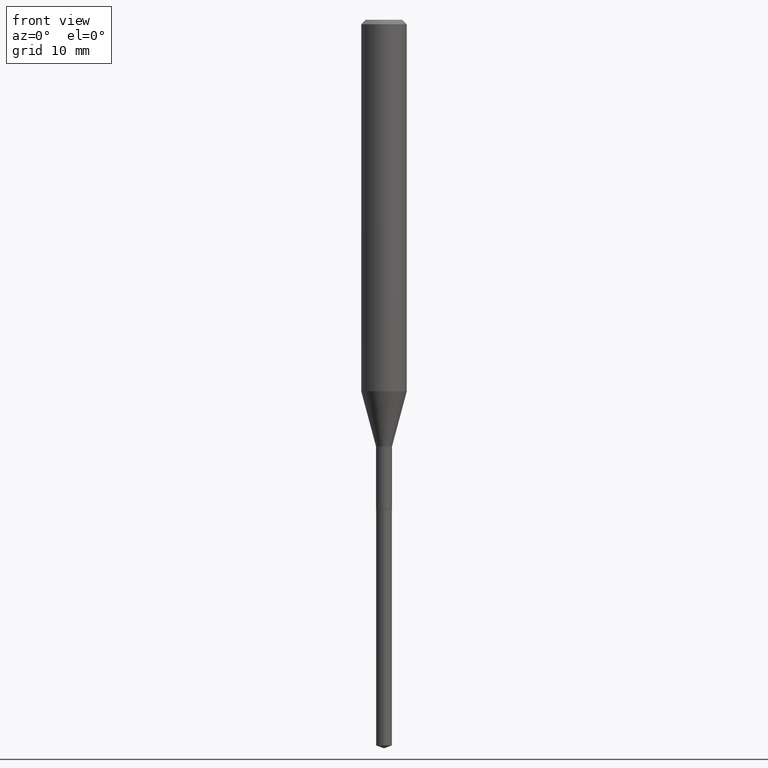
[diagram: clean part render]
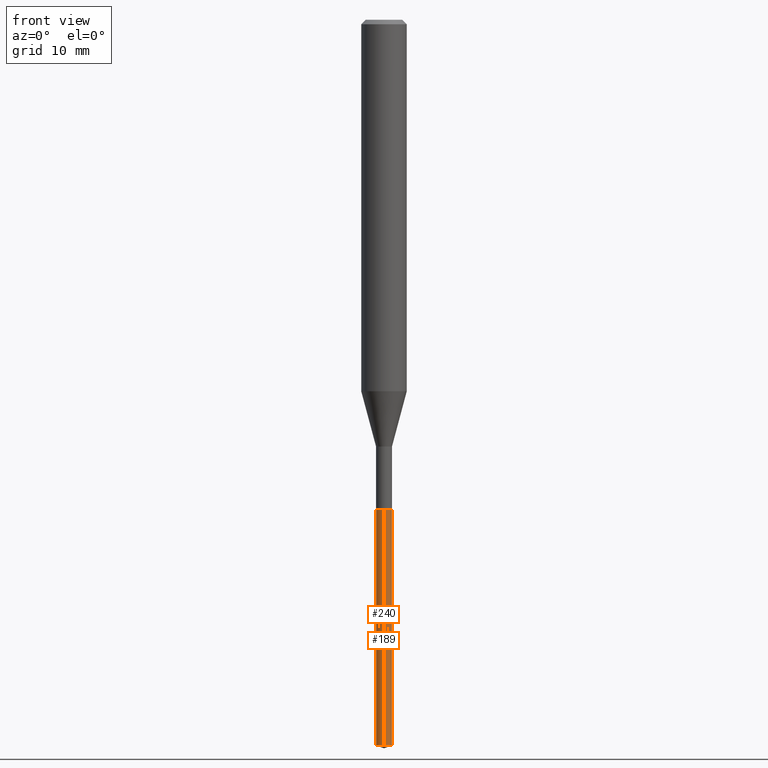
[diagram: same view with one multi-face feature highlighted, each face labeled with its STEP entity id]
A machine part, front view. The highlighted faces form ONE feature: a constant-radius fillet chain: 2 tangent blend faces with common blend radius 0.6998 mm. The faces share edges in the B-rep.
Their STEP definitions:
[1] entity #240 (Cylinder):
#2 = LINE ( 'NONE', #145, #117 ) ;
#6 = ORIENTED_EDGE ( 'NONE', *, *, #220, .F. ) ;
#21 = EDGE_CURVE ( 'NONE', #69, #209, #286, .T. ) ;
#31 = DIRECTION ( 'NONE',  ( -2.444907786698359005E-29, 3.492284750679457290E-15, 1.000000000000000000 ) ) ;
#35 = VERTEX_POINT ( 'NONE', #281 ) ;
#42 = CARTESIAN_POINT ( 'NONE',  ( 6.136867880703221821E-29, -8.763131324286595835E-15, -2.509672620045966251 ) ) ;
#50 = DIRECTION ( 'NONE',  ( -2.444907786698359005E-29, 3.492284750679457290E-15, 1.000000000000000000 ) ) ;
#52 = CARTESIAN_POINT ( 'NONE',  ( -1.923806217701952372E-16, -0.02755000000000876192, -2.509672620045966251 ) ) ;
#69 = VERTEX_POINT ( 'NONE', #93 ) ;
#80 = AXIS2_PLACEMENT_3D ( 'NONE', #385, #231, #118 ) ;
#93 = CARTESIAN_POINT ( 'NONE',  ( 1.957545237019690942E-16, 0.02754999999999408963, -1.692899999999999849 ) ) ;
#117 = VECTOR ( 'NONE', #381, 39.37007874015748143 ) ;
#118 = DIRECTION ( 'NONE',  ( -6.982962677686265922E-15, -1.000000000000000000, 0.000000000000000000 ) ) ;
#125 = EDGE_CURVE ( 'NONE', #35, #456, #450, .T. ) ;
#145 = CARTESIAN_POINT ( 'NONE',  ( -1.923806217702152546E-16, -0.02755000000000591351, -1.692899999999999849 ) ) ;
#188 = EDGE_LOOP ( 'NONE', ( #6, #327, #459, #275 ) ) ;
#209 = VERTEX_POINT ( 'NONE', #466 ) ;
#216 = VECTOR ( 'NONE', #242, 39.37007874015748143 ) ;
#220 = EDGE_CURVE ( 'NONE', #35, #69, #356, .T. ) ;
#231 = DIRECTION ( 'NONE',  ( -2.444907786698359005E-29, 3.492284750679457290E-15, 1.000000000000000000 ) ) ;
#238 = FACE_OUTER_BOUND ( 'NONE', #188, .T. ) ;
#240 = ADVANCED_FACE ( 'NONE', ( #238 ), #389, .T. ) ;
#242 = DIRECTION ( 'NONE',  ( -2.444907786698359285E-29, 3.492284750679457685E-15, 1.000000000000000000 ) ) ;
#275 = ORIENTED_EDGE ( 'NONE', *, *, #21, .F. ) ;
#281 = CARTESIAN_POINT ( 'NONE',  ( 1.957545237019688970E-16, 0.02754999999999123081, -2.509672620045966251 ) ) ;
#286 = CIRCLE ( 'NONE', #80, 0.02755000000000000157 ) ;
#321 = DIRECTION ( 'NONE',  ( -6.982962677686265922E-15, -1.000000000000000000, 0.000000000000000000 ) ) ;
#327 = ORIENTED_EDGE ( 'NONE', *, *, #125, .T. ) ;
#354 = CARTESIAN_POINT ( 'NONE',  ( 4.139934141990817236E-29, -5.910728758527560286E-15, -1.692899999999999849 ) ) ;
#356 = LINE ( 'NONE', #427, #216 ) ;
#381 = DIRECTION ( 'NONE',  ( -2.444907786698359285E-29, 3.492284750679457685E-15, 1.000000000000000000 ) ) ;
#385 = CARTESIAN_POINT ( 'NONE',  ( 4.139934141990817236E-29, -5.910728758527560286E-15, -1.692899999999999849 ) ) ;
#389 = CYLINDRICAL_SURFACE ( 'NONE', #474, 0.02755000000000000157 ) ;
#427 = CARTESIAN_POINT ( 'NONE',  ( 1.957545237019490029E-16, 0.02754999999999408963, -1.692899999999999849 ) ) ;
#437 = EDGE_CURVE ( 'NONE', #456, #209, #2, .T. ) ;
#450 = CIRCLE ( 'NONE', #457, 0.02755000000000000157 ) ;
#453 = DIRECTION ( 'NONE',  ( -6.982962677686265922E-15, -1.000000000000000000, 0.000000000000000000 ) ) ;
#456 = VERTEX_POINT ( 'NONE', #52 ) ;
#457 = AXIS2_PLACEMENT_3D ( 'NONE', #42, #31, #453 ) ;
#459 = ORIENTED_EDGE ( 'NONE', *, *, #437, .T. ) ;
#466 = CARTESIAN_POINT ( 'NONE',  ( -1.923806217702152546E-16, -0.02755000000000591351, -1.692899999999999849 ) ) ;
#474 = AXIS2_PLACEMENT_3D ( 'NONE', #354, #50, #321 ) ;
[2] entity #189 (Cylinder):
#2 = LINE ( 'NONE', #145, #117 ) ;
#4 = ORIENTED_EDGE ( 'NONE', *, *, #261, .F. ) ;
#17 = CARTESIAN_POINT ( 'NONE',  ( 4.139934141990817236E-29, -5.910728758527560286E-15, -1.692899999999999849 ) ) ;
#23 = AXIS2_PLACEMENT_3D ( 'NONE', #386, #290, #45 ) ;
#35 = VERTEX_POINT ( 'NONE', #281 ) ;
#39 = CIRCLE ( 'NONE', #352, 0.02755000000000000157 ) ;
#45 = DIRECTION ( 'NONE',  ( -6.982962677686265922E-15, -1.000000000000000000, 0.000000000000000000 ) ) ;
#52 = CARTESIAN_POINT ( 'NONE',  ( -1.923806217701952372E-16, -0.02755000000000876192, -2.509672620045966251 ) ) ;
#69 = VERTEX_POINT ( 'NONE', #93 ) ;
#72 = EDGE_CURVE ( 'NONE', #456, #35, #39, .T. ) ;
#86 = FACE_OUTER_BOUND ( 'NONE', #149, .T. ) ;
#93 = CARTESIAN_POINT ( 'NONE',  ( 1.957545237019690942E-16, 0.02754999999999408963, -1.692899999999999849 ) ) ;
#117 = VECTOR ( 'NONE', #381, 39.37007874015748143 ) ;
#120 = DIRECTION ( 'NONE',  ( -2.444907786698359005E-29, 3.492284750679457290E-15, 1.000000000000000000 ) ) ;
#145 = CARTESIAN_POINT ( 'NONE',  ( -1.923806217702152546E-16, -0.02755000000000591351, -1.692899999999999849 ) ) ;
#149 = EDGE_LOOP ( 'NONE', ( #274, #194, #4, #153 ) ) ;
#153 = ORIENTED_EDGE ( 'NONE', *, *, #437, .F. ) ;
#189 = ADVANCED_FACE ( 'NONE', ( #86 ), #469, .T. ) ;
#194 = ORIENTED_EDGE ( 'NONE', *, *, #220, .T. ) ;
#209 = VERTEX_POINT ( 'NONE', #466 ) ;
#216 = VECTOR ( 'NONE', #242, 39.37007874015748143 ) ;
#220 = EDGE_CURVE ( 'NONE', #35, #69, #356, .T. ) ;
#242 = DIRECTION ( 'NONE',  ( -2.444907786698359285E-29, 3.492284750679457685E-15, 1.000000000000000000 ) ) ;
#261 = EDGE_CURVE ( 'NONE', #209, #69, #262, .T. ) ;
#262 = CIRCLE ( 'NONE', #23, 0.02755000000000000157 ) ;
#274 = ORIENTED_EDGE ( 'NONE', *, *, #72, .T. ) ;
#281 = CARTESIAN_POINT ( 'NONE',  ( 1.957545237019688970E-16, 0.02754999999999123081, -2.509672620045966251 ) ) ;
#290 = DIRECTION ( 'NONE',  ( -2.444907786698359005E-29, 3.492284750679457290E-15, 1.000000000000000000 ) ) ;
#352 = AXIS2_PLACEMENT_3D ( 'NONE', #361, #394, #483 ) ;
#356 = LINE ( 'NONE', #427, #216 ) ;
#361 = CARTESIAN_POINT ( 'NONE',  ( 6.136867880703221821E-29, -8.763131324286595835E-15, -2.509672620045966251 ) ) ;
#372 = AXIS2_PLACEMENT_3D ( 'NONE', #17, #120, #398 ) ;
#381 = DIRECTION ( 'NONE',  ( -2.444907786698359285E-29, 3.492284750679457685E-15, 1.000000000000000000 ) ) ;
#386 = CARTESIAN_POINT ( 'NONE',  ( 4.139934141990817236E-29, -5.910728758527560286E-15, -1.692899999999999849 ) ) ;
#394 = DIRECTION ( 'NONE',  ( -2.444907786698359005E-29, 3.492284750679457290E-15, 1.000000000000000000 ) ) ;
#398 = DIRECTION ( 'NONE',  ( -6.982962677686265922E-15, -1.000000000000000000, 0.000000000000000000 ) ) ;
#427 = CARTESIAN_POINT ( 'NONE',  ( 1.957545237019490029E-16, 0.02754999999999408963, -1.692899999999999849 ) ) ;
#437 = EDGE_CURVE ( 'NONE', #456, #209, #2, .T. ) ;
#456 = VERTEX_POINT ( 'NONE', #52 ) ;
#466 = CARTESIAN_POINT ( 'NONE',  ( -1.923806217702152546E-16, -0.02755000000000591351, -1.692899999999999849 ) ) ;
#469 = CYLINDRICAL_SURFACE ( 'NONE', #372, 0.02755000000000000157 ) ;
#483 = DIRECTION ( 'NONE',  ( -6.982962677686265922E-15, -1.000000000000000000, 0.000000000000000000 ) ) ;